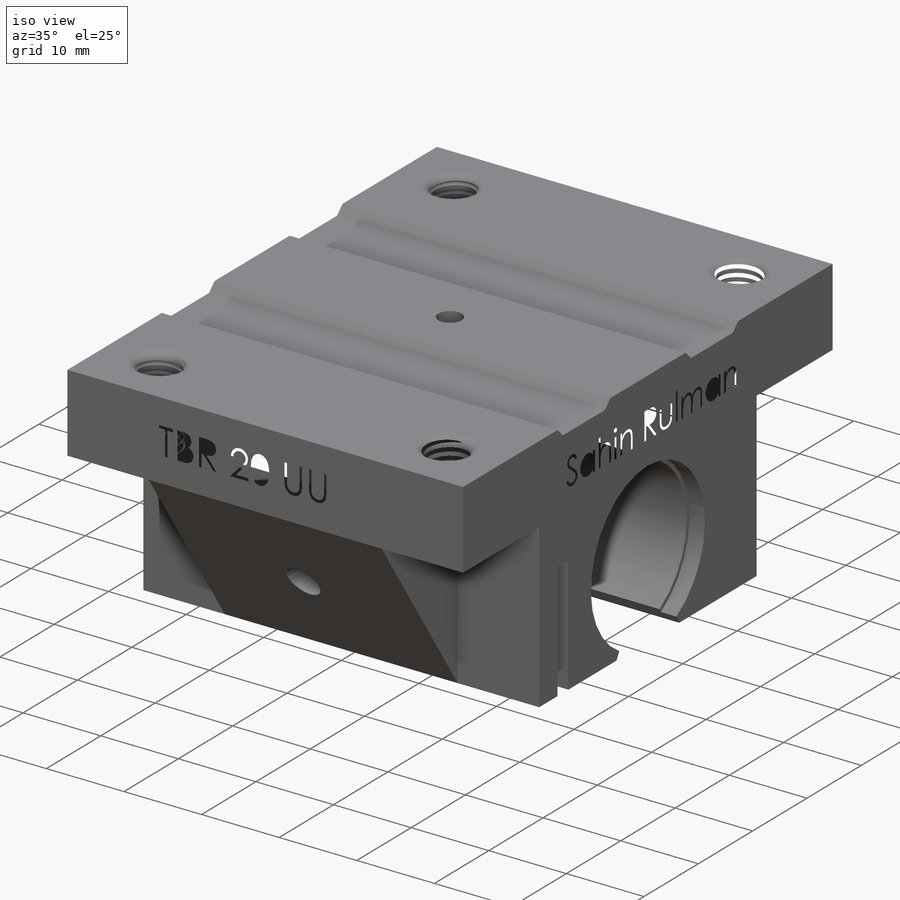
[diagram: iso view]
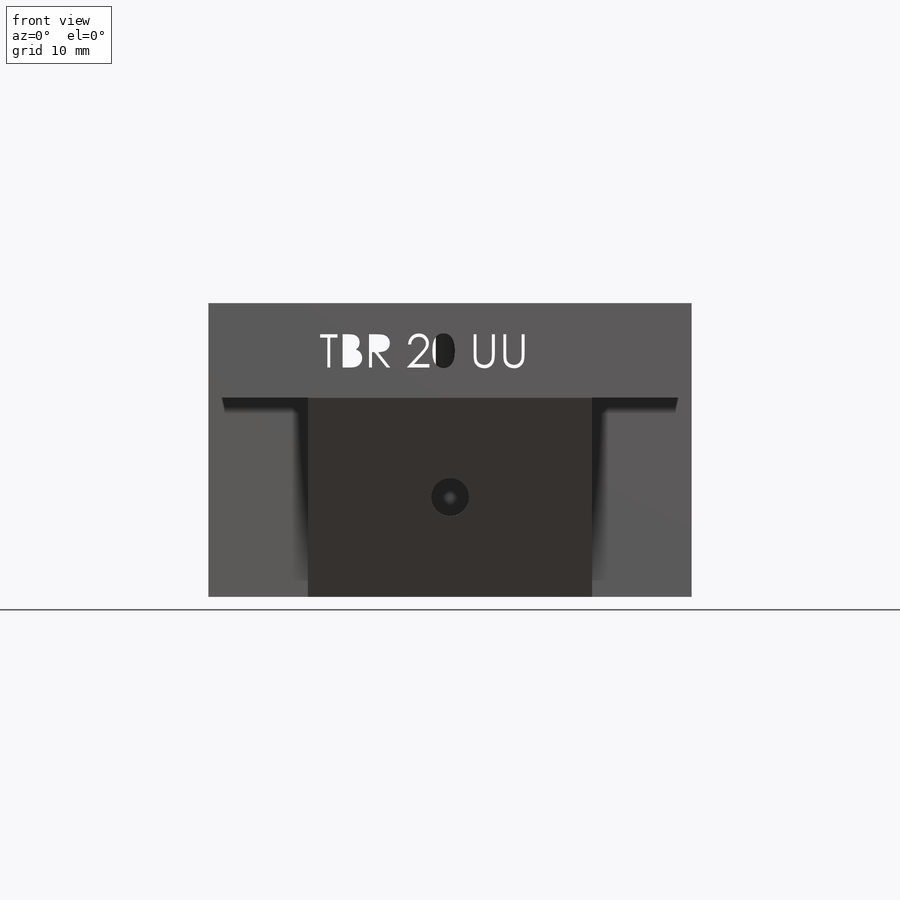
[diagram: front view]
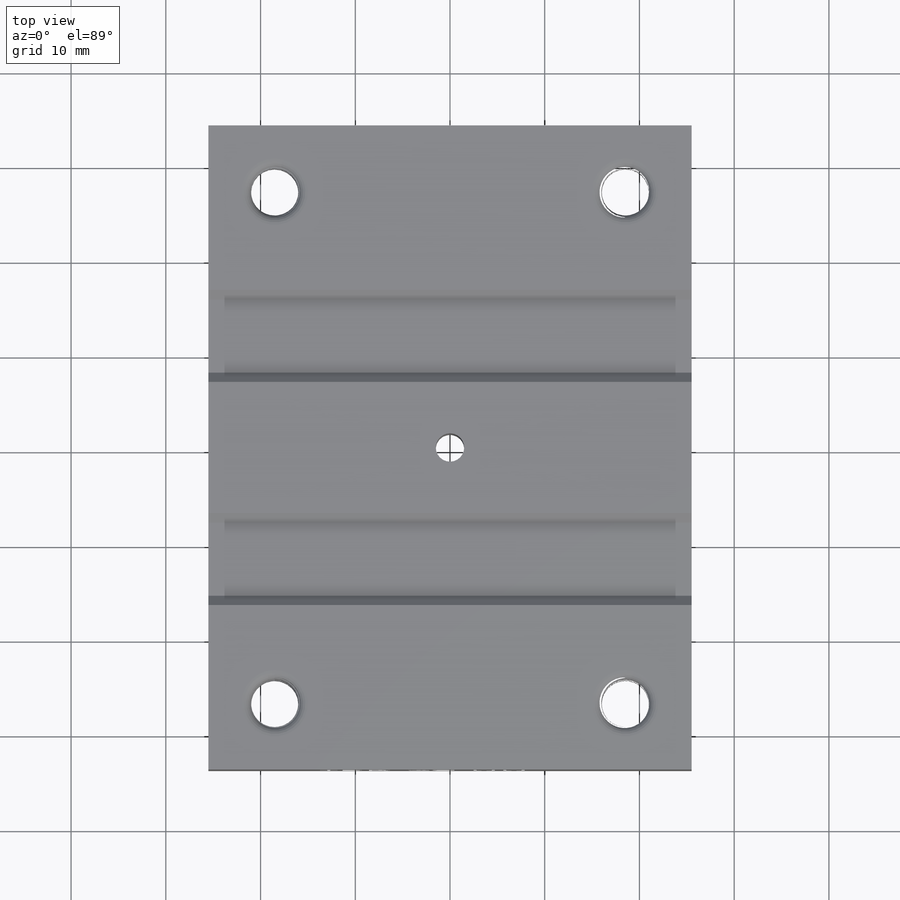
[diagram: top view]
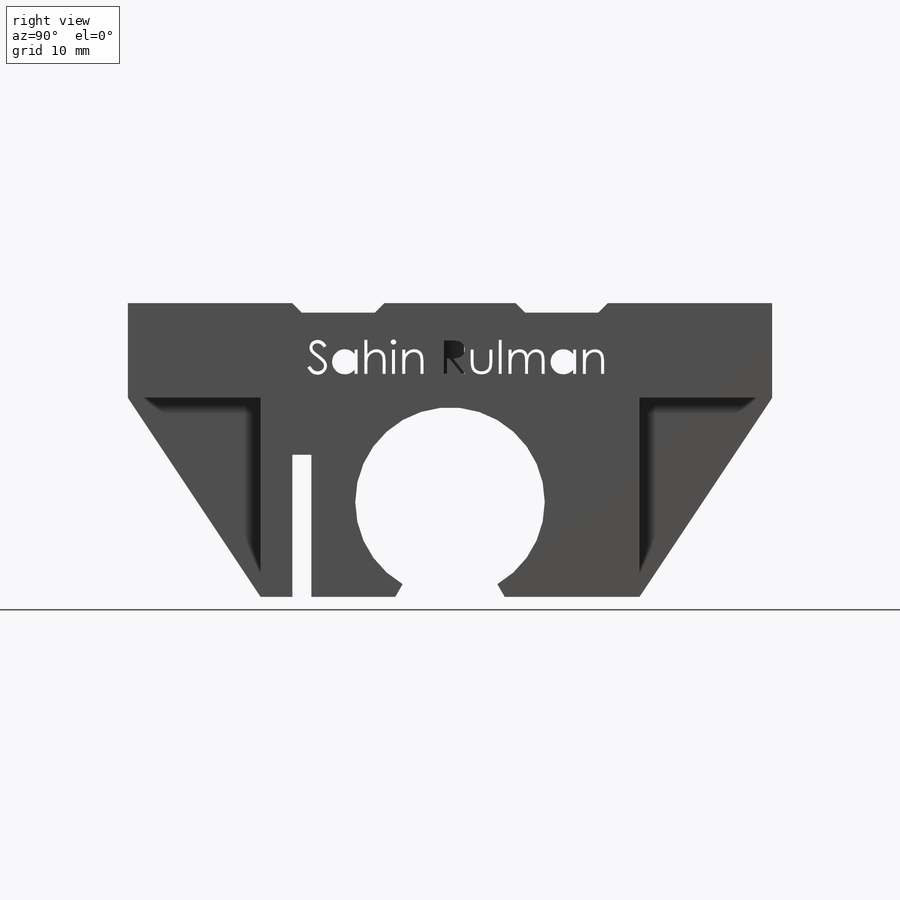
[diagram: right view]
SOLIDWORKS PART (.sldprt)
format: sldprt  version: not decoded by parser v0  size: 1,512,960 bytes
history: native  units: mm
features: sketch x9, cut_extrude x5, mirror x4, plane x2, material x1, extrude x1, fillet x1, helix x1, sweep x1 (+11 scaffold rows collapsed)
feature tree (36):
  scaffold x11  (default folders/planes/origin — collapsed)
  material  "Material <not specified>"
  sketch  "Sketch1"  dims[c1.D3=20.0mm c1.D1=31.0mm c1.D2=68.0mm c2.D3=34.0mm c2.D4=10.0mm c2.D5=31.0mm c2.D6=2.0mm c2.D7=15.0mm c2.D8=21.0mm c2.D9=~45.826304mm c3.D9=30.0deg c3.D10=~17.78348mm c4.D10=30.0deg c4.D9=1.0mm c5.D10=1.0mm c5.D11=1.0mm c5.D12=14.0mm c5.D13=14.0mm c5.D14=10.0mm c5.D15=21.0mm]
  extrude  "Boss-Extrude1"  Depth=51mm
  sketch  "Sketch2"  dims[D1=30.0mm]
  mirror  "Mirror1"
  plane  "Plane1"  Offset=37.444576mm
  sketch  "Sketch4"  dims[D1=4.0mm]
  cut_extrude  "Cut-Extrude2"  Depth=22mm
  sketch  "Sketch5"  dims[D1=21.0mm]
  cut_extrude  "Cut-Extrude3"  Depth=2mm
  mirror  "Mirror2"
  sketch  "Sketch6"  dims[D5=5.0mm D6=3.0mm D1=18.5mm D2=18.5mm D3=27.0mm D4=27.0mm]
  cut_extrude  "Cut-Extrude4"  [1 undecoded]
  fillet  "Fillet1"  Radius=1mm
  sketch  "Sketch7"
  helix  "Helix/Spiral1"  Pitch=14mm
  plane  "Plane2"
  sketch  "Sketch8"  dims[D1=0.5mm]
  sweep  "Cut-Sweep1"
  mirror  "Mirror3"
  mirror  "Mirror4"
  sketch  "Sketch9"
  cut_extrude  "Cut-Extrude5"  Depth=2mm
  sketch  "Sketch10"
  cut_extrude  "Cut-Extrude6"  Depth=2mm
decode coverage: 13 of 22 modeling features carry decoded parameters
note: ~ marks probable driven/reference dimensions
note: 1 parameter value undecoded
note: suppression state not decoded; provenance and decode notes live in map.json
